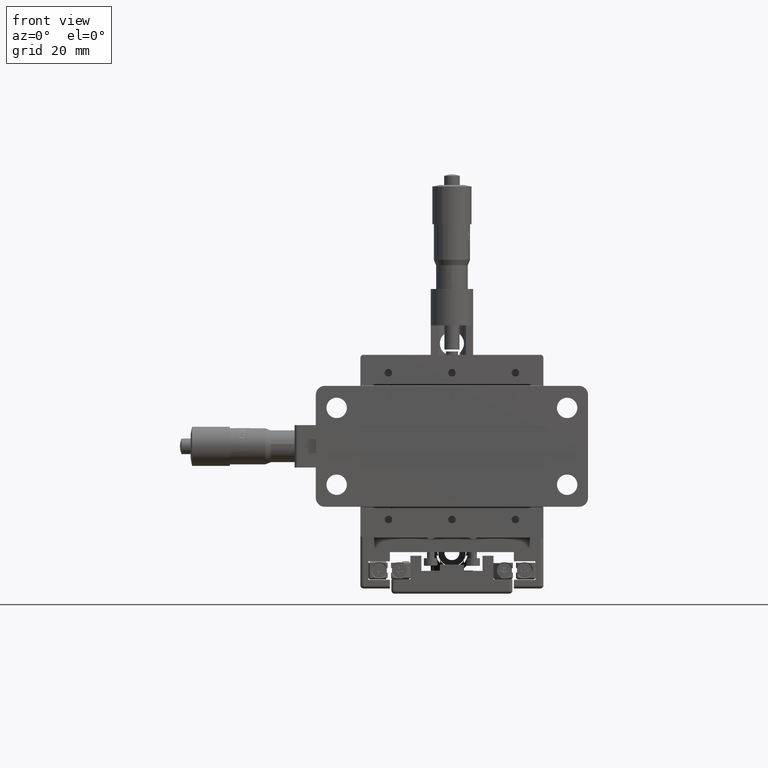
[diagram: clean part render]
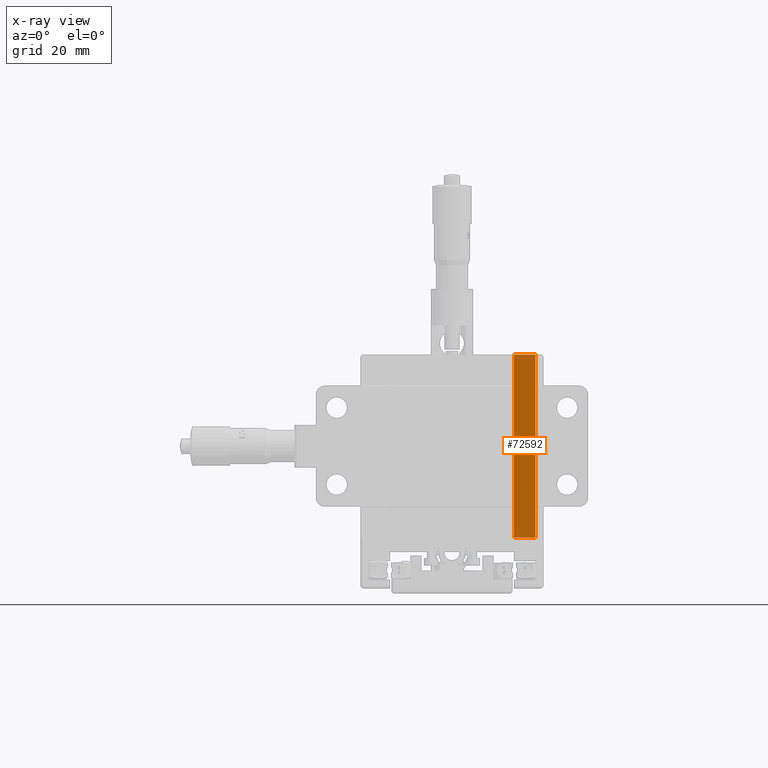
[diagram: x-ray — body ghosted, one internal face saturated and labeled with its STEP entity id]
A machine part, front view, then the same camera in x-ray: the body is ghosted and one INTERNAL B-rep face — a face not visible from any outside direction — is saturated and labeled: STEP entity #72592.
In plain terms, the highlighted planar face has unit normal (0, -1, 0).
Its self-contained STEP definition (entity closure, byte-faithful):
#2862 = DIRECTION ( 'NONE',  ( 0.0000000000000000000, -0.0000000000000000000, -1.000000000000000000 ) ) ;
#6136 = CARTESIAN_POINT ( 'NONE',  ( 8.316032552456079000, 6.418207989436229600, 34.75752594368277900 ) ) ;
#7286 = VECTOR ( 'NONE', #24628, 1000.000000000000000 ) ;
#7747 = FACE_OUTER_BOUND ( 'NONE', #15036, .T. ) ;
#8206 = VERTEX_POINT ( 'NONE', #29466 ) ;
#15036 = EDGE_LOOP ( 'NONE', ( #75034, #68919, #49175, #65969 ) ) ;
#19756 = LINE ( 'NONE', #30407, #74493 ) ;
#24628 = DIRECTION ( 'NONE',  ( -0.0000000000000000000, -0.0000000000000000000, 1.000000000000000000 ) ) ;
#26101 = VERTEX_POINT ( 'NONE', #32993 ) ;
#29466 = CARTESIAN_POINT ( 'NONE',  ( 35.91603255245603800, 6.418207989436229600, 34.75752594368277900 ) ) ;
#30407 = CARTESIAN_POINT ( 'NONE',  ( 8.316032552456079000, 6.418207989436229600, -25.74247405631721700 ) ) ;
#32306 = VECTOR ( 'NONE', #63572, 1000.000000000000000 ) ;
#32929 = LINE ( 'NONE', #61156, #49668 ) ;
#32993 = CARTESIAN_POINT ( 'NONE',  ( 35.91603255245603800, 6.418207989436229600, -25.74247405631721700 ) ) ;
#36754 = CARTESIAN_POINT ( 'NONE',  ( 28.81603255245601500, 6.418207989436229600, 34.75752594368277900 ) ) ;
#38342 = VERTEX_POINT ( 'NONE', #65876 ) ;
#39301 = CARTESIAN_POINT ( 'NONE',  ( 28.81603255245601500, 6.418207989436229600, -25.74247405631721700 ) ) ;
#45615 = DIRECTION ( 'NONE',  ( 0.0000000000000000000, -1.000000000000000000, 0.0000000000000000000 ) ) ;
#49175 = ORIENTED_EDGE ( 'NONE', *, *, #87504, .T. ) ;
#49668 = VECTOR ( 'NONE', #68301, 1000.000000000000000 ) ;
#49771 = EDGE_CURVE ( 'NONE', #26101, #8206, #32929, .T. ) ;
#61156 = CARTESIAN_POINT ( 'NONE',  ( 35.91603255245603800, 6.418207989436229600, -25.74247405631721700 ) ) ;
#63011 = EDGE_CURVE ( 'NONE', #75852, #8206, #70303, .T. ) ;
#63572 = DIRECTION ( 'NONE',  ( 1.000000000000000000, 0.0000000000000000000, 0.0000000000000000000 ) ) ;
#64273 = LINE ( 'NONE', #39301, #7286 ) ;
#65876 = CARTESIAN_POINT ( 'NONE',  ( 28.81603255245601500, 6.418207989436229600, -25.74247405631721700 ) ) ;
#65969 = ORIENTED_EDGE ( 'NONE', *, *, #63011, .T. ) ;
#68301 = DIRECTION ( 'NONE',  ( -0.0000000000000000000, -0.0000000000000000000, 1.000000000000000000 ) ) ;
#68919 = ORIENTED_EDGE ( 'NONE', *, *, #80994, .F. ) ;
#70303 = LINE ( 'NONE', #6136, #32306 ) ;
#72592 = ADVANCED_FACE ( 'NONE', ( #7747 ), #73388, .F. ) ;
#73388 = PLANE ( 'NONE',  #80073 ) ;
#74493 = VECTOR ( 'NONE', #80337, 1000.000000000000000 ) ;
#75034 = ORIENTED_EDGE ( 'NONE', *, *, #49771, .F. ) ;
#75852 = VERTEX_POINT ( 'NONE', #36754 ) ;
#80073 = AXIS2_PLACEMENT_3D ( 'NONE', #88304, #45615, #2862 ) ;
#80337 = DIRECTION ( 'NONE',  ( 1.000000000000000000, 0.0000000000000000000, 0.0000000000000000000 ) ) ;
#80994 = EDGE_CURVE ( 'NONE', #38342, #26101, #19756, .T. ) ;
#87504 = EDGE_CURVE ( 'NONE', #38342, #75852, #64273, .T. ) ;
#88304 = CARTESIAN_POINT ( 'NONE',  ( 8.316032552456079000, 6.418207989436229600, -25.74247405631721700 ) ) ;